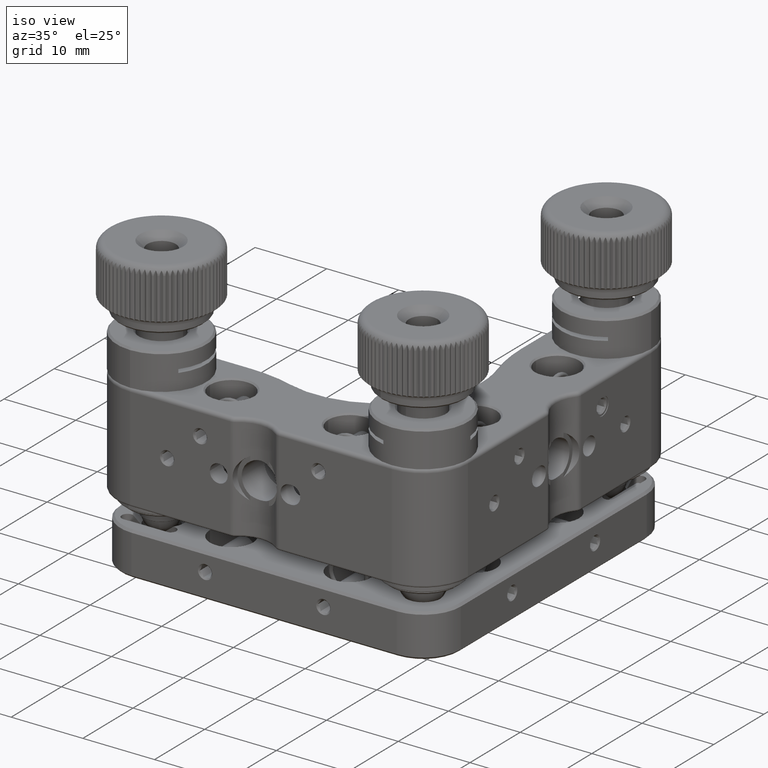
[diagram: clean part render]
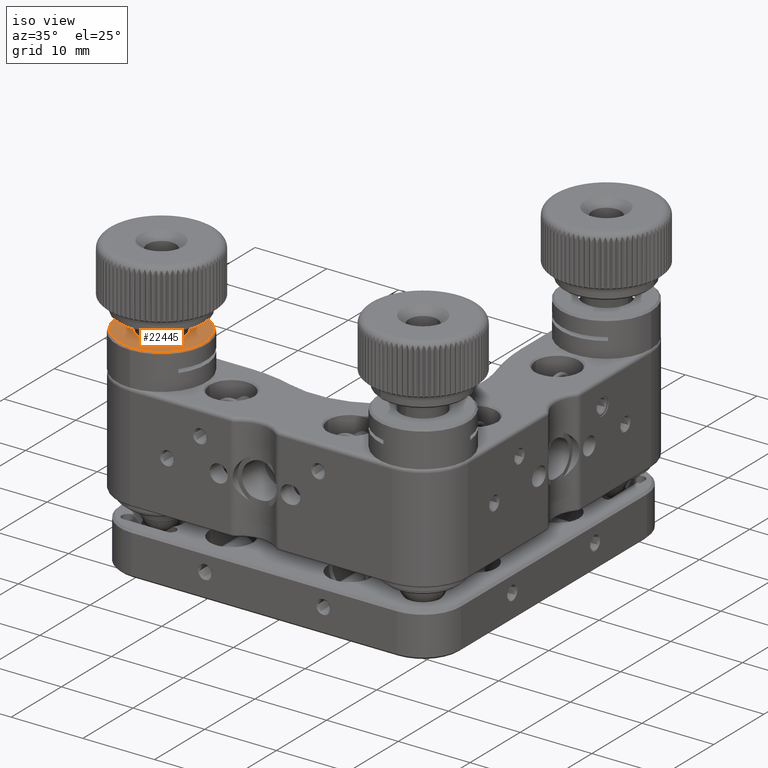
[diagram: same view with one face highlighted and labeled with its STEP entity id]
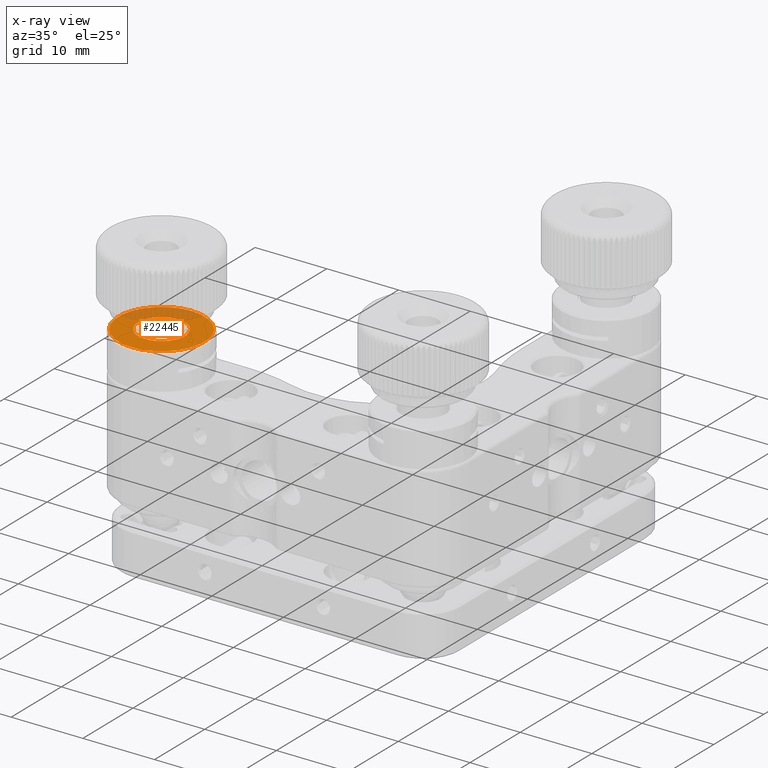
[diagram: x-ray of the same camera — body ghosted, the highlighted face saturated]
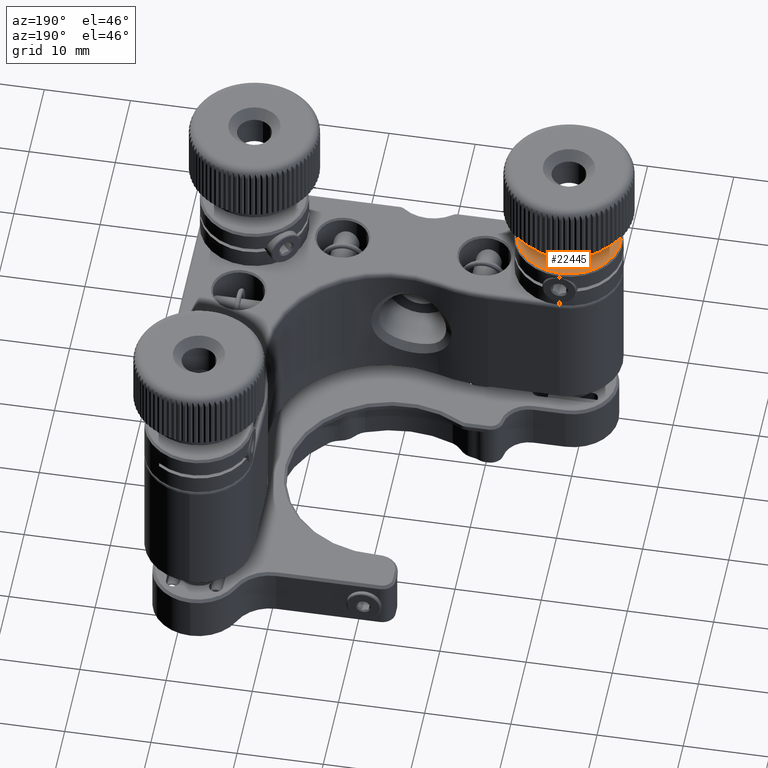
[diagram: same view with one face highlighted and labeled with its STEP entity id]
A machine part, iso view. The second image highlights one B-rep face of the part: STEP entity #22445.
The next image is the same camera in x-ray: the body ghosted, the highlighted face saturated — about 29% of this face is hidden behind the body in this view.
A second angle (auxiliary view) of the same face is appended — the face is thin or edge-on in the first view.
In plain terms, the highlighted planar face has unit normal (0, 0, -1).
Its self-contained STEP definition (entity closure, byte-faithful):
#883 = FACE_OUTER_BOUND ( 'NONE', #13342, .T. ) ;
#4499 = AXIS2_PLACEMENT_3D ( 'NONE', #30475, #30744, #47044 ) ;
#4693 = CARTESIAN_POINT ( 'NONE',  ( -18.22930649221203936, -12.25003568521148800, 12.50000000000000000 ) ) ;
#5259 = CARTESIAN_POINT ( 'NONE',  ( -18.27155573727912596, -24.49996282790467106, 12.50000000000000000 ) ) ;
#6076 = DIRECTION ( 'NONE',  ( 0.000000000000000000, 0.000000000000000000, -1.000000000000000000 ) ) ;
#11026 = CARTESIAN_POINT ( 'NONE',  ( -18.26120898338514564, -21.49998067051041772, 12.50000000000000000 ) ) ;
#11204 = ORIENTED_EDGE ( 'NONE', *, *, #34690, .T. ) ;
#13342 = EDGE_LOOP ( 'NONE', ( #51405, #29602 ) ) ;
#14115 = ORIENTED_EDGE ( 'NONE', *, *, #19165, .T. ) ;
#14963 = EDGE_CURVE ( 'NONE', #52905, #53426, #17517, .T. ) ;
#15544 = CIRCLE ( 'NONE', #36436, 3.249999999999992450 ) ;
#15782 = CARTESIAN_POINT ( 'NONE',  ( -18.25000000000000000, -18.24999999999998579, 12.50000000000000000 ) ) ;
#17517 = CIRCLE ( 'NONE', #4499, 5.999999999999998224 ) ;
#19165 = EDGE_CURVE ( 'NONE', #40139, #21688, #46189, .T. ) ;
#20984 = AXIS2_PLACEMENT_3D ( 'NONE', #15782, #6076, #36463 ) ;
#21044 = CARTESIAN_POINT ( 'NONE',  ( -18.25000000000000000, -18.24999999999998579, 12.50000000000000000 ) ) ;
#21688 = VERTEX_POINT ( 'NONE', #27240 ) ;
#21862 = DIRECTION ( 'NONE',  ( 0.003448917964660035574, 0.9999940524647498163, 0.000000000000000000 ) ) ;
#22445 = ADVANCED_FACE ( 'NONE', ( #883, #34376 ), #51539, .F. ) ;
#27240 = CARTESIAN_POINT ( 'NONE',  ( -18.23879101661485436, -15.00001932948955563, 12.50000000000000000 ) ) ;
#28110 = CARTESIAN_POINT ( 'NONE',  ( -18.25000000000000000, -18.24999999999998579, 12.50000000000000000 ) ) ;
#29602 = ORIENTED_EDGE ( 'NONE', *, *, #14963, .T. ) ;
#30032 = CIRCLE ( 'NONE', #32630, 5.999999999999998224 ) ;
#30475 = CARTESIAN_POINT ( 'NONE',  ( -18.25000000000000000, -18.24999999999998579, 12.50000000000000000 ) ) ;
#30744 = DIRECTION ( 'NONE',  ( -0.000000000000000000, -0.000000000000000000, 1.000000000000000000 ) ) ;
#32630 = AXIS2_PLACEMENT_3D ( 'NONE', #28110, #44670, #45204 ) ;
#34376 = FACE_BOUND ( 'NONE', #47686, .T. ) ;
#34690 = EDGE_CURVE ( 'NONE', #21688, #40139, #15544, .T. ) ;
#36436 = AXIS2_PLACEMENT_3D ( 'NONE', #21044, #38176, #38712 ) ;
#36463 = DIRECTION ( 'NONE',  ( 0.003448917964660402468, 0.9999940524647499274, 0.000000000000000000 ) ) ;
#38176 = DIRECTION ( 'NONE',  ( 0.000000000000000000, 0.000000000000000000, -1.000000000000000000 ) ) ;
#38712 = DIRECTION ( 'NONE',  ( 0.003448917964660402468, 0.9999940524647499274, 0.000000000000000000 ) ) ;
#40139 = VERTEX_POINT ( 'NONE', #11026 ) ;
#44670 = DIRECTION ( 'NONE',  ( -0.000000000000000000, -0.000000000000000000, 1.000000000000000000 ) ) ;
#45204 = DIRECTION ( 'NONE',  ( 0.003448917964659950573, 0.9999940524647499274, 0.000000000000000000 ) ) ;
#45570 = CARTESIAN_POINT ( 'NONE',  ( -18.27069350778795709, -24.24996431478848180, 12.50000000000000000 ) ) ;
#45619 = AXIS2_PLACEMENT_3D ( 'NONE', #5259, #46894, #21862 ) ;
#46189 = CIRCLE ( 'NONE', #20984, 3.249999999999992450 ) ;
#46894 = DIRECTION ( 'NONE',  ( 0.000000000000000000, 0.000000000000000000, -1.000000000000000000 ) ) ;
#47044 = DIRECTION ( 'NONE',  ( 0.003448917964659950573, 0.9999940524647499274, 0.000000000000000000 ) ) ;
#47686 = EDGE_LOOP ( 'NONE', ( #14115, #11204 ) ) ;
#48206 = EDGE_CURVE ( 'NONE', #53426, #52905, #30032, .T. ) ;
#51405 = ORIENTED_EDGE ( 'NONE', *, *, #48206, .T. ) ;
#51539 = PLANE ( 'NONE',  #45619 ) ;
#52905 = VERTEX_POINT ( 'NONE', #45570 ) ;
#53426 = VERTEX_POINT ( 'NONE', #4693 ) ;